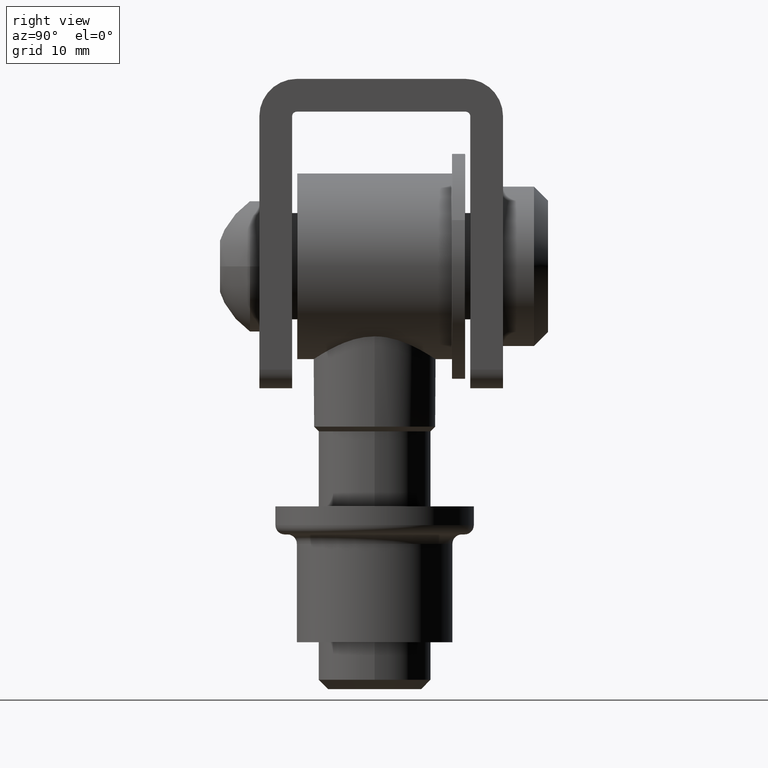
[diagram: clean part render]
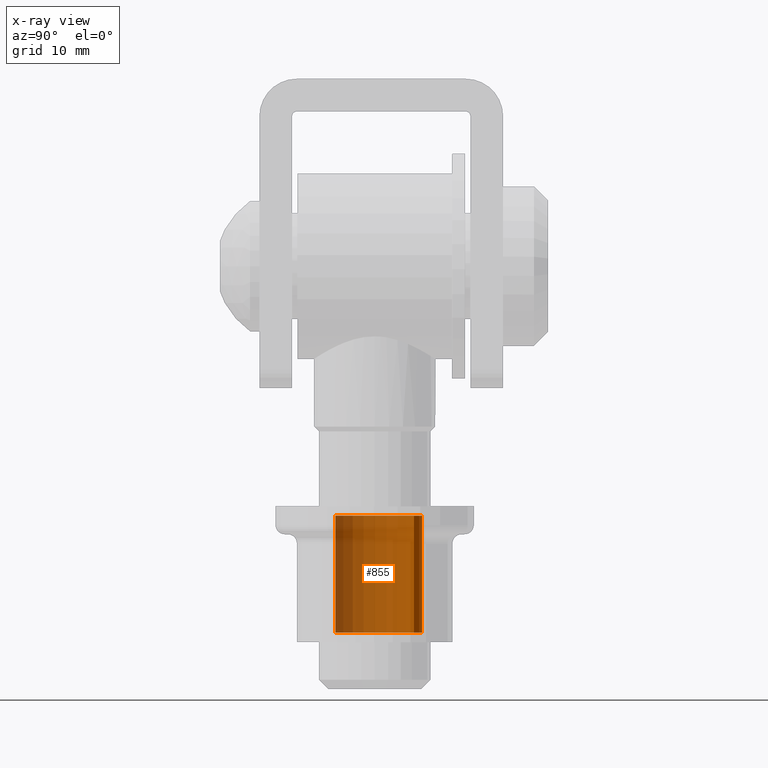
[diagram: x-ray — body ghosted, one internal face saturated and labeled with its STEP entity id]
A machine part, right view, then the same camera in x-ray: the body is ghosted and one INTERNAL B-rep face — a face not visible from any outside direction — is saturated and labeled: STEP entity #855.
In plain terms, the highlighted cylindrical surface (partial cylindrical patch) has radius 5.1 mm, axis along (0, 0, -1).
Its self-contained STEP definition (entity closure, byte-faithful):
#47 = CARTESIAN_POINT ( 'NONE',  ( -1.626303258728256700E-016, 13.50000000000001200, 5.100000000000005000 ) ) ;
#173 = VERTEX_POINT ( 'NONE', #47 ) ;
#368 = FACE_OUTER_BOUND ( 'NONE', #1931, .T. ) ;
#521 = CARTESIAN_POINT ( 'NONE',  ( 4.619395416923253100E-016, 14.49999999999999800, -5.100000000000006800 ) ) ;
#855 = ADVANCED_FACE ( 'NONE', ( #368 ), #13988, .F. ) ;
#1116 = DIRECTION ( 'NONE',  ( 0.0000000000000000000, 0.0000000000000000000, 1.000000000000000000 ) ) ;
#1153 = VECTOR ( 'NONE', #12692, 1000.000000000000000 ) ;
#1493 = ORIENTED_EDGE ( 'NONE', *, *, #4130, .T. ) ;
#1527 = AXIS2_PLACEMENT_3D ( 'NONE', #4203, #6429, #11869 ) ;
#1931 = EDGE_LOOP ( 'NONE', ( #3227, #1493, #12620, #5191 ) ) ;
#2271 = VECTOR ( 'NONE', #13744, 1000.000000000000000 ) ;
#3199 = CARTESIAN_POINT ( 'NONE',  ( 4.619395416923246200E-016, 1.000000000000007800, -5.099999999999997000 ) ) ;
#3227 = ORIENTED_EDGE ( 'NONE', *, *, #4451, .T. ) ;
#4130 = EDGE_CURVE ( 'NONE', #7030, #10862, #11323, .T. ) ;
#4203 = CARTESIAN_POINT ( 'NONE',  ( -1.626303258728256700E-016, 13.50000000000001200, -6.505213034913026600E-016 ) ) ;
#4451 = EDGE_CURVE ( 'NONE', #8834, #7030, #8984, .T. ) ;
#4545 = DIRECTION ( 'NONE',  ( -3.755563391555109900E-033, 1.000000000000000000, 2.600005424922768400E-033 ) ) ;
#5191 = ORIENTED_EDGE ( 'NONE', *, *, #11121, .F. ) ;
#6058 = CARTESIAN_POINT ( 'NONE',  ( -1.626303258728256700E-016, 14.49999999999999800, 5.100000000000005000 ) ) ;
#6429 = DIRECTION ( 'NONE',  ( -3.755563391555109900E-033, 1.000000000000000000, 2.600005424922768400E-033 ) ) ;
#6757 = EDGE_CURVE ( 'NONE', #10862, #173, #13792, .T. ) ;
#6795 = AXIS2_PLACEMENT_3D ( 'NONE', #11757, #12976, #14028 ) ;
#7030 = VERTEX_POINT ( 'NONE', #3199 ) ;
#7597 = CARTESIAN_POINT ( 'NONE',  ( -1.626303258728256700E-016, 14.49999999999999800, -6.505213034913026600E-016 ) ) ;
#8516 = LINE ( 'NONE', #6058, #2271 ) ;
#8834 = VERTEX_POINT ( 'NONE', #12530 ) ;
#8984 = CIRCLE ( 'NONE', #6795, 5.100000000000005900 ) ;
#10862 = VERTEX_POINT ( 'NONE', #12955 ) ;
#11121 = EDGE_CURVE ( 'NONE', #8834, #173, #8516, .T. ) ;
#11323 = LINE ( 'NONE', #521, #1153 ) ;
#11757 = CARTESIAN_POINT ( 'NONE',  ( 0.0000000000000000000, 1.000000000000007800, 0.0000000000000000000 ) ) ;
#11869 = DIRECTION ( 'NONE',  ( 0.0000000000000000000, 0.0000000000000000000, 1.000000000000000000 ) ) ;
#12098 = AXIS2_PLACEMENT_3D ( 'NONE', #7597, #4545, #1116 ) ;
#12530 = CARTESIAN_POINT ( 'NONE',  ( -1.626303258728253900E-016, 1.000000000000007800, 5.099999999999997000 ) ) ;
#12620 = ORIENTED_EDGE ( 'NONE', *, *, #6757, .T. ) ;
#12692 = DIRECTION ( 'NONE',  ( -3.755563391555109900E-033, 1.000000000000000000, 2.600005424922768400E-033 ) ) ;
#12955 = CARTESIAN_POINT ( 'NONE',  ( 4.619395416923243200E-016, 13.50000000000001200, -5.099999999999997900 ) ) ;
#12976 = DIRECTION ( 'NONE',  ( 3.755563391555109900E-033, -1.000000000000000000, -2.600005424922768400E-033 ) ) ;
#13744 = DIRECTION ( 'NONE',  ( -3.755563391555109900E-033, 1.000000000000000000, 2.600005424922768400E-033 ) ) ;
#13792 = CIRCLE ( 'NONE', #1527, 5.100000000000005900 ) ;
#13988 = CYLINDRICAL_SURFACE ( 'NONE', #12098, 5.100000000000005900 ) ;
#14028 = DIRECTION ( 'NONE',  ( 2.051328787785033900E-037, 0.0000000000000000000, -1.000000000000000000 ) ) ;